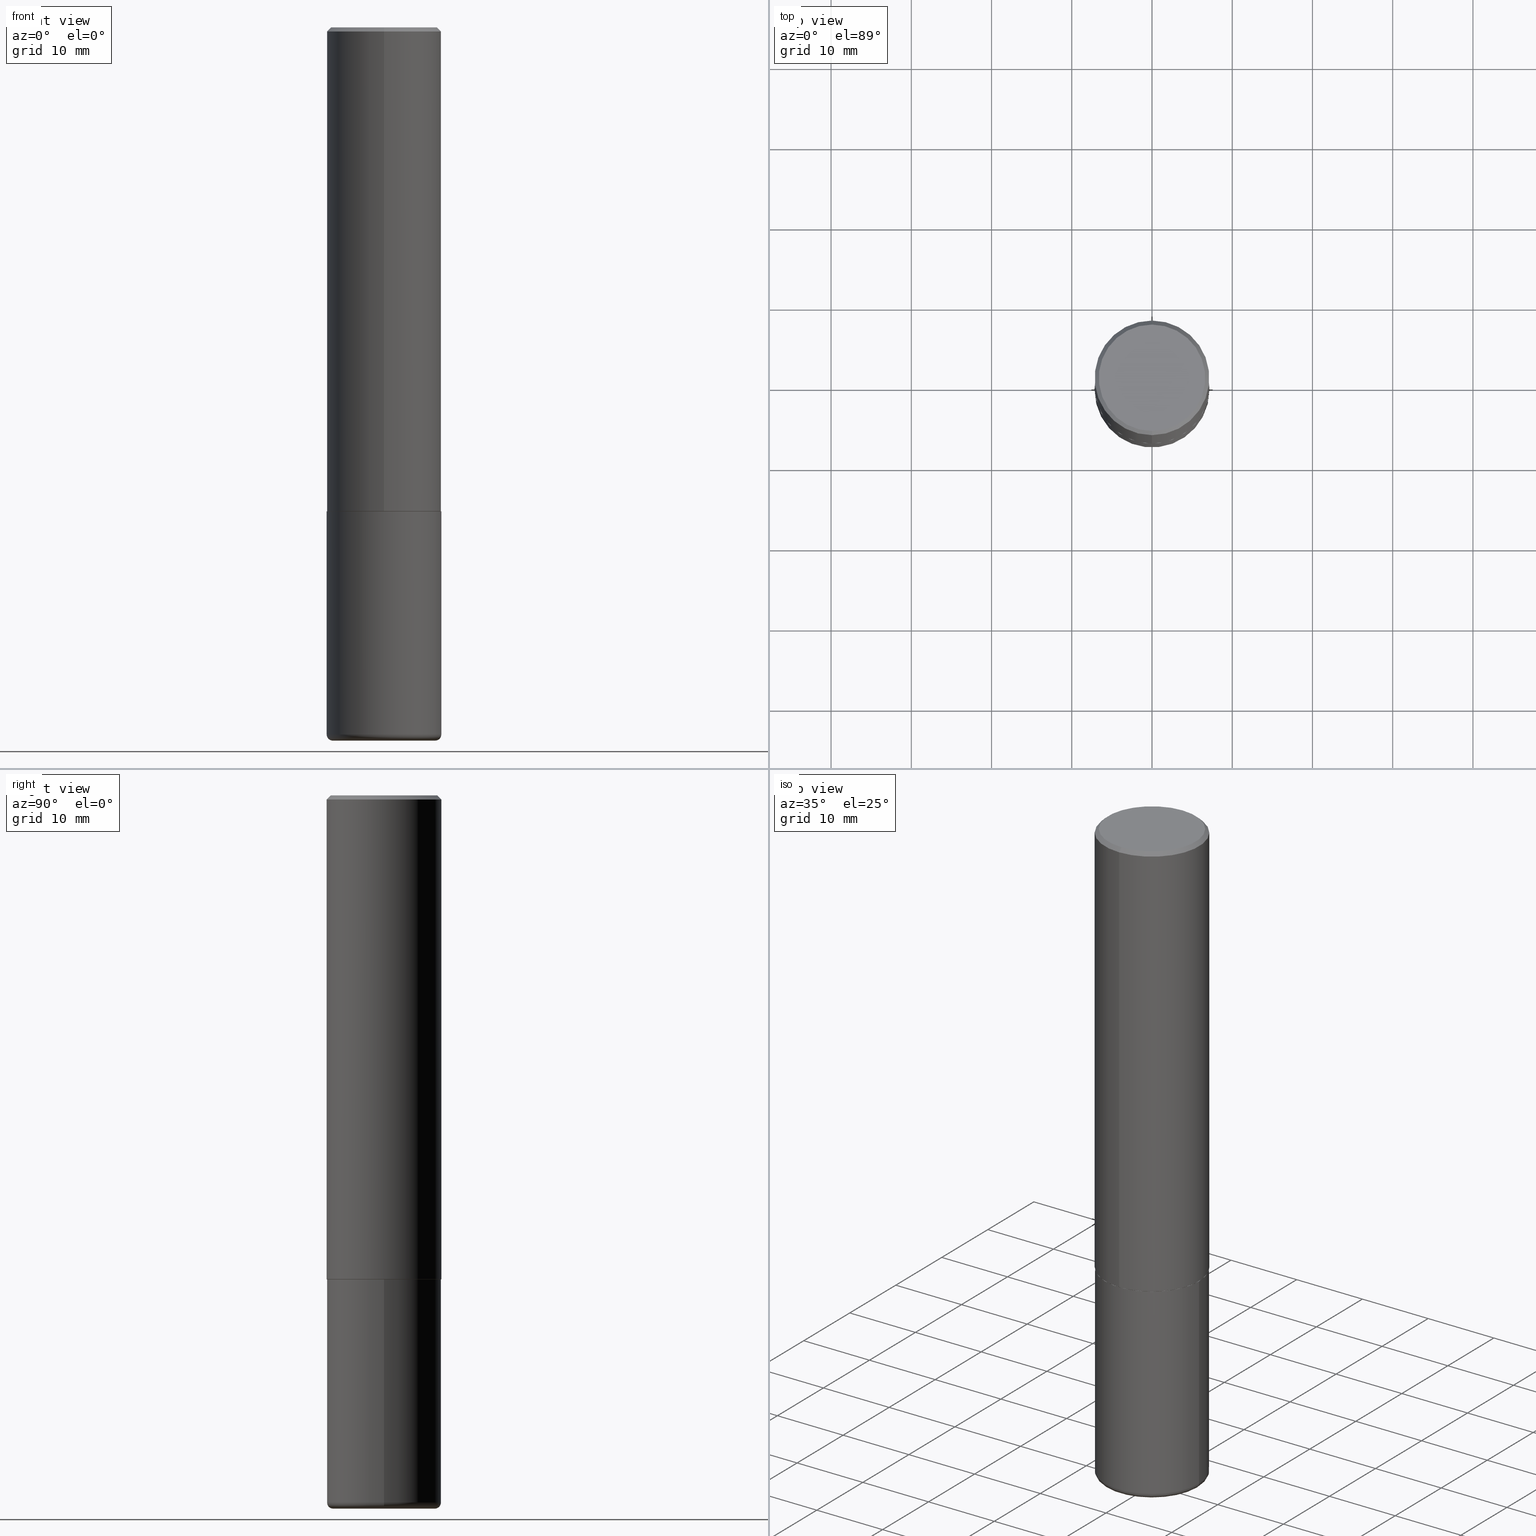
[diagram: canonical four-view strip — front | top / right | iso, engineering-drawing reading convention]
A machine part, canonical four-view strip (front | top / right | iso — engineering-drawing reading convention). The complete STEP part file that produces these views, byte-faithful:
ISO-10303-21;
HEADER;
FILE_DESCRIPTION (( 'STEP AP203' ),
    '1' );
FILE_NAME ('36868.STEP',
    '2024-03-01T18:29:36',
    ( '' ),
    ( '' ),
    'SwSTEP 2.0',
    'SolidWorks 2023',
    '' );
FILE_SCHEMA (( 'CONFIG_CONTROL_DESIGN' ));
ENDSEC;

DATA;
#1 = ORIENTED_EDGE ( 'NONE', *, *, #41, .F. ) ;
#2 = EDGE_CURVE ( 'NONE', #405, #361, #144, .T. ) ;
#3 = CIRCLE ( 'NONE', #380, 0.2812500000000002776 ) ;
#4 = CC_DESIGN_APPROVAL ( #233, ( #291 ) ) ;
#5 = VERTEX_POINT ( 'NONE', #278 ) ;
#6 = ORIENTED_EDGE ( 'NONE', *, *, #57, .T. ) ;
#7 = CC_DESIGN_PERSON_AND_ORGANIZATION_ASSIGNMENT ( #70, #304, ( #291 ) ) ;
#8 = CARTESIAN_POINT ( 'NONE',  ( 1.824298999545535127E-15, 0.2612499999999997602, -8.138688755214296184E-16 ) ) ;
#9 = FACE_OUTER_BOUND ( 'NONE', #189, .T. ) ;
#10 = DIRECTION ( 'NONE',  ( 1.000000000000000000, 0.000000000000000000, 0.000000000000000000 ) ) ;
#11 = CARTESIAN_POINT ( 'NONE',  ( 8.485776757462424574E-29, -1.211544024578571439E-14, -3.469999999999999751 ) ) ;
#12 = ADVANCED_FACE ( 'NONE', ( #136 ), #211, .T. ) ;
#13 = CARTESIAN_POINT ( 'NONE',  ( -1.929515061873242463E-15, -0.2812500000000000555, -0.01999999999999908101 ) ) ;
#14 = APPLICATION_PROTOCOL_DEFINITION ( 'international standard', 'config_control_design', 1994, #244 ) ;
#15 = CALENDAR_DATE ( 2024, 1, 3 ) ;
#16 = CARTESIAN_POINT ( 'NONE',  ( -1.860910081895526737E-15, -0.2612499999999997602, 1.108081726401262636E-15 ) ) ;
#17 = DIRECTION ( 'NONE',  ( -6.982962677686265133E-15, -1.000000000000000000, 3.490678759099360641E-15 ) ) ;
#18 = CARTESIAN_POINT ( 'NONE',  ( 4.892058489249632096E-31, -6.981357518198745391E-17, -0.02000000000000006287 ) ) ;
#19 = APPROVAL_STATUS ( 'not_yet_approved' ) ;
#20 = DIRECTION ( 'NONE',  ( -2.445468806185136877E-29, 3.491481338843145188E-15, 1.000000000000000000 ) ) ;
#21 = APPROVAL_DATE_TIME ( #373, #366 ) ;
#22 = DIRECTION ( 'NONE',  ( -6.982962677686265922E-15, -1.000000000000000000, 3.899158599342391639E-15 ) ) ;
#23 = AXIS2_PLACEMENT_3D ( 'NONE', #320, #321, #184 ) ;
#24 = APPROVAL_DATE_TIME ( #369, #233 ) ;
#25 = DIRECTION ( 'NONE',  ( -6.982962677686265133E-15, -1.000000000000000000, 3.885294924322503744E-15 ) ) ;
#26 = CARTESIAN_POINT ( 'NONE',  ( -1.956975290421518122E-15, -0.2802500000000083258, -2.374999999999998668 ) ) ;
#27 = DATE_AND_TIME ( #314, #357 ) ;
#28 = ADVANCED_BREP_SHAPE_REPRESENTATION ( '36868', ( #105, #383, #214 ), #177 ) ;
#29 = EDGE_CURVE ( 'NONE', #360, #123, #142, .T. ) ;
#30 = PERSON_AND_ORGANIZATION ( #101, #198 ) ;
#31 = DIRECTION ( 'NONE',  ( -6.982962677686266711E-15, -1.000000000000000000, 3.491481338843145583E-15 ) ) ;
#32 = ORIENTED_EDGE ( 'NONE', *, *, #392, .T. ) ;
#33 = EDGE_LOOP ( 'NONE', ( #401, #358, #1, #192 ) ) ;
#34 = CARTESIAN_POINT ( 'NONE',  ( 5.809319455983918402E-29, -8.290362052860982064E-15, -2.374999999999999556 ) ) ;
#35 = ORIENTED_EDGE ( 'NONE', *, *, #336, .T. ) ;
#36 = MECHANICAL_CONTEXT ( 'NONE', #147, 'mechanical' ) ;
#37 = ORIENTED_EDGE ( 'NONE', *, *, #185, .T. ) ;
#38 = CLOSED_SHELL ( 'NONE', ( #220, #164, #382, #64, #295, #289, #174, #273 ) ) ;
#39 = EDGE_LOOP ( 'NONE', ( #292, #131, #356, #265 ) ) ;
#40 = ORIENTED_EDGE ( 'NONE', *, *, #392, .F. ) ;
#41 = EDGE_CURVE ( 'NONE', #67, #361, #307, .T. ) ;
#42 = DIRECTION ( 'NONE',  ( -2.446029244624807763E-29, 3.490678759099361035E-15, 1.000000000000000000 ) ) ;
#43 = DIRECTION ( 'NONE',  ( -2.445468806185136597E-29, 3.491481338843145583E-15, 1.000000000000000000 ) ) ;
#44 = EDGE_CURVE ( 'NONE', #361, #67, #285, .T. ) ;
#45 = AXIS2_PLACEMENT_3D ( 'NONE', #294, #99, #243 ) ;
#46 = AXIS2_PLACEMENT_3D ( 'NONE', #315, #352, #416 ) ;
#47 = DIRECTION ( 'NONE',  ( 6.982962677686265922E-15, 1.000000000000000000, -3.490678759099361035E-15 ) ) ;
#48 = PERSON_AND_ORGANIZATION ( #101, #198 ) ;
#49 = CARTESIAN_POINT ( 'NONE',  ( 1.963958253099262907E-15, 0.2812499999999999445, -0.02000000000000104472 ) ) ;
#50 = DIRECTION ( 'NONE',  ( -6.982962677686265133E-15, -1.000000000000000000, 3.490678759099360641E-15 ) ) ;
#51 = APPROVAL_ROLE ( '' ) ;
#52 = CARTESIAN_POINT ( 'NONE',  ( 0.2812500000000000000, -1.025622643285173184E-14, -2.374999999999999556 ) ) ;
#53 = DIRECTION ( 'NONE',  ( -2.446029244624808043E-29, 3.490678759099361035E-15, 1.000000000000000000 ) ) ;
#54 = VECTOR ( 'NONE', #403, 39.37007874015748143 ) ;
#55 = VECTOR ( 'NONE', #255, 39.37007874015748854 ) ;
#56 = PERSON_AND_ORGANIZATION_ROLE ( 'creator' ) ;
#57 = EDGE_CURVE ( 'NONE', #59, #237, #406, .T. ) ;
#58 = CARTESIAN_POINT ( 'NONE',  ( -4.797688249310059522E-45, 6.846683661468670826E-31, 1.961419005865552790E-16 ) ) ;
#59 = VERTEX_POINT ( 'NONE', #346 ) ;
#60 = EDGE_LOOP ( 'NONE', ( #396, #68 ) ) ;
#61 = AXIS2_PLACEMENT_3D ( 'NONE', #117, #180, #213 ) ;
#62 = EDGE_CURVE ( 'NONE', #293, #123, #3, .T. ) ;
#63 = ORIENTED_EDGE ( 'NONE', *, *, #367, .T. ) ;
#64 = ADVANCED_FACE ( 'NONE', ( #274 ), #331, .T. ) ;
#65 = DIRECTION ( 'NONE',  ( 1.000000000000000000, -6.982962677686266711E-15, 4.876176775795935793E-29 ) ) ;
#66 = ORIENTED_EDGE ( 'NONE', *, *, #384, .F. ) ;
#67 = VERTEX_POINT ( 'NONE', #52 ) ;
#68 = ORIENTED_EDGE ( 'NONE', *, *, #44, .T. ) ;
#69 = DIRECTION ( 'NONE',  ( -6.982962677686265922E-15, -1.000000000000000000, 3.490678759099361035E-15 ) ) ;
#70 = PERSON_AND_ORGANIZATION ( #101, #198 ) ;
#71 = VERTEX_POINT ( 'NONE', #203 ) ;
#72 = DIRECTION ( 'NONE',  ( 1.000000000000000000, -6.982962677686266711E-15, 0.000000000000000000 ) ) ;
#73 = CIRCLE ( 'NONE', #318, 0.2512500000000000289 ) ;
#74 = SHAPE_DEFINITION_REPRESENTATION ( #154, #28 ) ;
#75 = DIRECTION ( 'NONE',  ( -2.446029244624808043E-29, 3.490678759099361035E-15, 1.000000000000000000 ) ) ;
#76 = DIRECTION ( 'NONE',  ( -6.982962677686265922E-15, -1.000000000000000000, 3.899158599342391639E-15 ) ) ;
#77 = AXIS2_PLACEMENT_3D ( 'NONE', #148, #152, #50 ) ;
#78 = CARTESIAN_POINT ( 'NONE',  ( 5.809319455983918402E-29, -8.290362052860982064E-15, -2.374999999999999556 ) ) ;
#79 = DATE_AND_TIME ( #183, #269 ) ;
#80 = PLANE ( 'NONE',  #23 ) ;
#81 = FACE_OUTER_BOUND ( 'NONE', #165, .T. ) ;
#82 = CC_DESIGN_PERSON_AND_ORGANIZATION_ASSIGNMENT ( #204, #299, ( #291 ) ) ;
#83 = CARTESIAN_POINT ( 'NONE',  ( -0.2512500000000000289, -1.033020162218846287E-14, -3.469999999999999751 ) ) ;
#84 = CIRCLE ( 'NONE', #279, 0.2612499999999997602 ) ;
#85 = AXIS2_PLACEMENT_3D ( 'NONE', #83, #355, #226 ) ;
#86 = EDGE_LOOP ( 'NONE', ( #188, #333, #353, #326 ) ) ;
#87 = FACE_OUTER_BOUND ( 'NONE', #391, .T. ) ;
#88 = VERTEX_POINT ( 'NONE', #310 ) ;
#89 = CC_DESIGN_PERSON_AND_ORGANIZATION_ASSIGNMENT ( #193, #130, ( #225 ) ) ;
#90 = CARTESIAN_POINT ( 'NONE',  ( 0.000000000000000000, 0.000000000000000000, 0.000000000000000000 ) ) ;
#91 = ORIENTED_EDGE ( 'NONE', *, *, #367, .F. ) ;
#92 = ORIENTED_EDGE ( 'NONE', *, *, #413, .F. ) ;
#93 = AXIS2_PLACEMENT_3D ( 'NONE', #377, #368, #210 ) ;
#94 = CIRCLE ( 'NONE', #411, 0.2812500000000002776 ) ;
#95 = DIRECTION ( 'NONE',  ( -2.446029244624808043E-29, 3.490678759099361035E-15, 1.000000000000000000 ) ) ;
#96 = ORIENTED_EDGE ( 'NONE', *, *, #57, .F. ) ;
#97 = ORIENTED_EDGE ( 'NONE', *, *, #153, .F. ) ;
#98 = DIRECTION ( 'NONE',  ( -6.982962677686265922E-15, -1.000000000000000000, 3.899158599342391639E-15 ) ) ;
#99 = DIRECTION ( 'NONE',  ( -2.445468806185136597E-29, 3.491481338843145583E-15, 1.000000000000000000 ) ) ;
#100 = CIRCLE ( 'NONE', #138, 0.2812500000000000000 ) ;
#101 = PERSON ( 'UNSPECIFIED', 'UNSPECIFIED', 'UNSPECIFIED', ('UNSPECIFIED'), ('UNSPECIFIED'), ('UNSPECIFIED') ) ;
#102 = AXIS2_PLACEMENT_3D ( 'NONE', #359, #400, #65 ) ;
#103 = APPLICATION_PROTOCOL_DEFINITION ( 'international standard', 'config_control_design', 1994, #147 ) ;
#104 = FACE_OUTER_BOUND ( 'NONE', #288, .T. ) ;
#105 = MANIFOLD_SOLID_BREP ( 'Body-Move/Copy2[1]', #197 ) ;
#106 = CALENDAR_DATE ( 2024, 1, 3 ) ;
#107 = EDGE_CURVE ( 'NONE', #88, #71, #73, .T. ) ;
#108 = DIRECTION ( 'NONE',  ( 1.000000000000000000, -6.982962677686269866E-15, 0.000000000000000000 ) ) ;
#109 = APPROVAL_STATUS ( 'not_yet_approved' ) ;
#110 = TOROIDAL_SURFACE ( 'NONE', #340, 0.2512500000000000289, 0.02999999999999969705 ) ;
#111 = CIRCLE ( 'NONE', #85, 0.02999999999999967970 ) ;
#112 = CARTESIAN_POINT ( 'NONE',  ( 0.000000000000000000, 0.000000000000000000, 0.000000000000000000 ) ) ;
#113 = DIRECTION ( 'NONE',  ( -2.446029244624808043E-29, 3.490678759099361035E-15, 1.000000000000000000 ) ) ;
#114 = DATE_TIME_ROLE ( 'classification_date' ) ;
#115 = CIRCLE ( 'NONE', #246, 0.2802499999999999991 ) ;
#116 = AXIS2_PLACEMENT_3D ( 'NONE', #385, #31, #187 ) ;
#117 = CARTESIAN_POINT ( 'NONE',  ( 8.485776757462424574E-29, -1.211544024578571439E-14, -3.469999999999999751 ) ) ;
#118 = FACE_OUTER_BOUND ( 'NONE', #302, .T. ) ;
#119 = PRODUCT_DEFINITION ( 'UNKNOWN', '', #291, #335 ) ;
#120 = ADVANCED_FACE ( 'NONE', ( #104 ), #110, .T. ) ;
#121 = CARTESIAN_POINT ( 'NONE',  ( -0.2812499999999998335, -1.011703880146043420E-14, -3.469999999999999751 ) ) ;
#122 = AXIS2_PLACEMENT_3D ( 'NONE', #317, #182, #378 ) ;
#123 = VERTEX_POINT ( 'NONE', #342 ) ;
#124 = CC_DESIGN_APPROVAL ( #319, ( #119 ) ) ;
#125 = CC_DESIGN_DATE_AND_TIME_ASSIGNMENT ( #141, #114, ( #161 ) ) ;
#126 = DIRECTION ( 'NONE',  ( -2.446029244624808043E-29, 3.490678759099361035E-15, 1.000000000000000000 ) ) ;
#127 = ORIENTED_EDGE ( 'NONE', *, *, #234, .T. ) ;
#128 = ORIENTED_EDGE ( 'NONE', *, *, #223, .T. ) ;
#129 = AXIS2_PLACEMENT_3D ( 'NONE', #11, #43, #108 ) ;
#130 = PERSON_AND_ORGANIZATION_ROLE ( 'design_owner' ) ;
#131 = ORIENTED_EDGE ( 'NONE', *, *, #29, .T. ) ;
#132 = CARTESIAN_POINT ( 'NONE',  ( 5.809319455983918402E-29, -8.290362052860982064E-15, -2.374999999999999556 ) ) ;
#133 = ORIENTED_EDGE ( 'NONE', *, *, #29, .F. ) ;
#134 = ORIENTED_EDGE ( 'NONE', *, *, #223, .F. ) ;
#135 = LINE ( 'NONE', #238, #54 ) ;
#136 = FACE_OUTER_BOUND ( 'NONE', #33, .T. ) ;
#137 = LINE ( 'NONE', #171, #395 ) ;
#138 = AXIS2_PLACEMENT_3D ( 'NONE', #158, #95, #298 ) ;
#139 = CARTESIAN_POINT ( 'NONE',  ( 5.806873426739292794E-29, -8.286871374101881312E-15, -2.373999999999999222 ) ) ;
#140 = CARTESIAN_POINT ( 'NONE',  ( 1.991296016967738351E-15, 0.2802499999999917280, -2.375000000000000888 ) ) ;
#141 = DATE_AND_TIME ( #15, #167 ) ;
#142 = LINE ( 'NONE', #140, #256 ) ;
#143 = COORDINATED_UNIVERSAL_TIME_OFFSET ( 5, 0, .BEHIND. ) ;
#144 = LINE ( 'NONE', #176, #290 ) ;
#145 = CIRCLE ( 'NONE', #45, 0.2812500000000000000 ) ;
#146 = CIRCLE ( 'NONE', #258, 0.2512500000000000289 ) ;
#147 = APPLICATION_CONTEXT ( 'configuration controlled 3d designs of mechanical parts and assemblies' ) ;
#148 = CARTESIAN_POINT ( 'NONE',  ( 0.000000000000000000, 0.000000000000000000, 0.000000000000000000 ) ) ;
#149 = PERSON_AND_ORGANIZATION ( #101, #198 ) ;
#150 = CARTESIAN_POINT ( 'NONE',  ( -1.929515061873242463E-15, -0.2812500000000000555, -0.01999999999999908101 ) ) ;
#151 = CIRCLE ( 'NONE', #248, 0.2812500000000000000 ) ;
#152 = DIRECTION ( 'NONE',  ( -2.446029244624808043E-29, 3.490678759099361035E-15, 1.000000000000000000 ) ) ;
#153 = EDGE_CURVE ( 'NONE', #402, #405, #190, .T. ) ;
#154 = PRODUCT_DEFINITION_SHAPE ( 'NONE', 'NONE',  #119 ) ;
#155 = AXIS2_PLACEMENT_3D ( 'NONE', #267, #412, #72 ) ;
#156 = ORIENTED_EDGE ( 'NONE', *, *, #384, .T. ) ;
#157 = DIMENSIONAL_EXPONENTS ( 1.000000000000000000, 0.000000000000000000, 0.000000000000000000, 0.000000000000000000, 0.000000000000000000, 0.000000000000000000, 0.000000000000000000 ) ;
#158 = CARTESIAN_POINT ( 'NONE',  ( 4.892058489249632096E-31, -6.981357518198745391E-17, -0.02000000000000006287 ) ) ;
#159 = EDGE_LOOP ( 'NONE', ( #325, #334, #195, #389 ) ) ;
#160 = DIRECTION ( 'NONE',  ( -6.982962677686265133E-15, -1.000000000000000000, 3.490678759099360641E-15 ) ) ;
#161 = SECURITY_CLASSIFICATION ( '', '', #275 ) ;
#162 = ORIENTED_EDGE ( 'NONE', *, *, #234, .F. ) ;
#163 = CARTESIAN_POINT ( 'NONE',  ( 0.000000000000000000, 0.000000000000000000, 0.000000000000000000 ) ) ;
#164 = ADVANCED_FACE ( 'NONE', ( #375 ), #202, .T. ) ;
#165 = EDGE_LOOP ( 'NONE', ( #264, #417, #398, #418 ) ) ;
#166 = AXIS2_PLACEMENT_3D ( 'NONE', #345, #113, #76 ) ;
#167 = LOCAL_TIME ( 13, 29, 36.00000000000000000, #250 ) ;
#168 = DIRECTION ( 'NONE',  ( -2.445468806185136597E-29, 3.491481338843145583E-15, 1.000000000000000000 ) ) ;
#169 = UNCERTAINTY_MEASURE_WITH_UNIT (LENGTH_MEASURE( 1.000000000000000082E-05 ), #260, 'distance_accuracy_value', 'NONE');
#170 = PERSON_AND_ORGANIZATION_ROLE ( 'classification_officer' ) ;
#171 = CARTESIAN_POINT ( 'NONE',  ( 1.998401444325282562E-15, 0.2812500000000001665, -9.817534009966957842E-16 ) ) ;
#172 = CYLINDRICAL_SURFACE ( 'NONE', #77, 0.2812500000000001665 ) ;
#173 = DIRECTION ( 'NONE',  ( -2.446029244624808043E-29, 3.490678759099361035E-15, 1.000000000000000000 ) ) ;
#174 = ADVANCED_FACE ( 'NONE', ( #9 ), #409, .F. ) ;
#175 = AXIS2_PLACEMENT_3D ( 'NONE', #78, #215, #22 ) ;
#176 = CARTESIAN_POINT ( 'NONE',  ( -0.2812500000000000000, 1.998401444325281773E-15, -1.383450494134192269E-29 ) ) ;
#177 =( GEOMETRIC_REPRESENTATION_CONTEXT ( 3 ) GLOBAL_UNCERTAINTY_ASSIGNED_CONTEXT ( ( #169 ) ) GLOBAL_UNIT_ASSIGNED_CONTEXT ( ( #260, #324, #266 ) ) REPRESENTATION_CONTEXT ( 'NONE', 'WORKASPACE' ) );
#178 = FACE_OUTER_BOUND ( 'NONE', #159, .T. ) ;
#179 = CC_DESIGN_PERSON_AND_ORGANIZATION_ASSIGNMENT ( #149, #56, ( #119 ) ) ;
#180 = DIRECTION ( 'NONE',  ( -2.445468806185136597E-29, 3.491481338843145583E-15, 1.000000000000000000 ) ) ;
#181 = AXIS2_PLACEMENT_3D ( 'NONE', #112, #168, #365 ) ;
#182 = DIRECTION ( 'NONE',  ( -2.446029244624808043E-29, 3.490678759099361035E-15, 1.000000000000000000 ) ) ;
#183 = CALENDAR_DATE ( 2024, 1, 3 ) ;
#184 = DIRECTION ( 'NONE',  ( -1.000000000000000000, 6.982962677686265922E-15, -4.876176775795935793E-29 ) ) ;
#185 = EDGE_CURVE ( 'NONE', #237, #194, #100, .T. ) ;
#186 = DATE_TIME_ROLE ( 'creation_date' ) ;
#187 = DIRECTION ( 'NONE',  ( 1.000000000000000000, -6.982962677686277755E-15, 0.000000000000000000 ) ) ;
#188 = ORIENTED_EDGE ( 'NONE', *, *, #62, .T. ) ;
#189 = EDGE_LOOP ( 'NONE', ( #329, #134 ) ) ;
#190 = CIRCLE ( 'NONE', #129, 0.2812500000000000000 ) ;
#191 = EDGE_LOOP ( 'NONE', ( #235, #236 ) ) ;
#192 = ORIENTED_EDGE ( 'NONE', *, *, #300, .F. ) ;
#193 = PERSON_AND_ORGANIZATION ( #101, #198 ) ;
#194 = VERTEX_POINT ( 'NONE', #13 ) ;
#195 = ORIENTED_EDGE ( 'NONE', *, *, #249, .T. ) ;
#196 = CARTESIAN_POINT ( 'NONE',  ( -4.797688249310059522E-45, 6.846683661468670826E-31, 1.961419005865552790E-16 ) ) ;
#197 = CLOSED_SHELL ( 'NONE', ( #12, #120, #399, #312, #217, #216 ) ) ;
#198 = ORGANIZATION ( 'UNSPECIFIED', 'UNSPECIFIED', '' ) ;
#199 = ORIENTED_EDGE ( 'NONE', *, *, #354, .T. ) ;
#200 = PLANE ( 'NONE',  #305 ) ;
#201 = DIRECTION ( 'NONE',  ( 1.000000000000000000, -6.982962677686270655E-15, 4.883557194083114022E-29 ) ) ;
#202 = CYLINDRICAL_SURFACE ( 'NONE', #268, 0.2812500000000001665 ) ;
#203 = CARTESIAN_POINT ( 'NONE',  ( -0.2512500000000000289, -1.027599243190709680E-14, -3.499999999999999112 ) ) ;
#204 = PERSON_AND_ORGANIZATION ( #101, #198 ) ;
#205 = LOCAL_TIME ( 13, 29, 36.00000000000000000, #407 ) ;
#206 = DIRECTION ( 'NONE',  ( -2.446029244624808043E-29, 3.490678759099361035E-15, 1.000000000000000000 ) ) ;
#207 = PRODUCT_RELATED_PRODUCT_CATEGORY ( 'detail', '', ( #225 ) ) ;
#208 = APPROVAL_ROLE ( '' ) ;
#209 = DIRECTION ( 'NONE',  ( -2.445468806185136877E-29, 3.491481338843145188E-15, 1.000000000000000000 ) ) ;
#210 = DIRECTION ( 'NONE',  ( 6.982962677686266711E-15, 1.000000000000000000, -3.490694658571002804E-15 ) ) ;
#211 = CYLINDRICAL_SURFACE ( 'NONE', #181, 0.2812500000000000000 ) ;
#212 = DIRECTION ( 'NONE',  ( -2.446029244624808043E-29, 3.490678759099361035E-15, 1.000000000000000000 ) ) ;
#213 = DIRECTION ( 'NONE',  ( 1.000000000000000000, -6.982962677686270655E-15, 4.883557194083114022E-29 ) ) ;
#214 = AXIS2_PLACEMENT_3D ( 'NONE', #163, #296, #10 ) ;
#215 = DIRECTION ( 'NONE',  ( -2.446029244624808043E-29, 3.490678759099361035E-15, 1.000000000000000000 ) ) ;
#216 = ADVANCED_FACE ( 'NONE', ( #270 ), #371, .T. ) ;
#217 = ADVANCED_FACE ( 'NONE', ( #118 ), #347, .T. ) ;
#218 = CARTESIAN_POINT ( 'NONE',  ( 1.387395666507435011E-28, -4.609065897632661278E-15, -3.499999999999999112 ) ) ;
#219 = COORDINATED_UNIVERSAL_TIME_OFFSET ( 5, 0, .BEHIND. ) ;
#220 = ADVANCED_FACE ( 'NONE', ( #348 ), #410, .T. ) ;
#221 = APPROVAL_DATE_TIME ( #27, #319 ) ;
#222 = DIRECTION ( 'NONE',  ( -6.982962677686266711E-15, -1.000000000000000000, 3.490694658571002804E-15 ) ) ;
#223 = EDGE_CURVE ( 'NONE', #360, #5, #224, .T. ) ;
#224 = CIRCLE ( 'NONE', #166, 0.2802499999999999991 ) ;
#225 = PRODUCT ( '36868', '36868', '', ( #36 ) ) ;
#226 = DIRECTION ( 'NONE',  ( -1.000000000000000000, 7.105427357601001859E-15, 0.000000000000000000 ) ) ;
#227 = ORIENTED_EDGE ( 'NONE', *, *, #388, .T. ) ;
#228 = EDGE_CURVE ( 'NONE', #5, #360, #115, .T. ) ;
#229 = DIRECTION ( 'NONE',  ( 1.000000000000000000, -6.982962677686269077E-15, 0.000000000000000000 ) ) ;
#230 =( LENGTH_UNIT ( ) NAMED_UNIT ( * ) SI_UNIT ( $, .METRE. ) );
#231 = AXIS2_PLACEMENT_3D ( 'NONE', #34, #42, #69 ) ;
#232 = ORIENTED_EDGE ( 'NONE', *, *, #306, .F. ) ;
#233 = APPROVAL ( #390, 'UNSPECIFIED' ) ;
#234 = EDGE_CURVE ( 'NONE', #287, #59, #84, .T. ) ;
#235 = ORIENTED_EDGE ( 'NONE', *, *, #107, .F. ) ;
#236 = ORIENTED_EDGE ( 'NONE', *, *, #388, .F. ) ;
#237 = VERTEX_POINT ( 'NONE', #330 ) ;
#238 = CARTESIAN_POINT ( 'NONE',  ( -1.963958253099263301E-15, -0.2812500000000001665, 9.817534009966957842E-16 ) ) ;
#239 = VECTOR ( 'NONE', #209, 39.37007874015748143 ) ;
#240 = APPROVAL_PERSON_ORGANIZATION ( #30, #233, #208 ) ;
#241 = DIRECTION ( 'NONE',  ( -2.445468806185136597E-29, 3.491481338843145583E-15, 1.000000000000000000 ) ) ;
#242 = DIRECTION ( 'NONE',  ( 5.024295867787889629E-15, 0.7071067811865257013, 0.7071067811865691111 ) ) ;
#243 = DIRECTION ( 'NONE',  ( 1.000000000000000000, -6.982962677686269866E-15, 0.000000000000000000 ) ) ;
#244 = APPLICATION_CONTEXT ( 'configuration controlled 3d designs of mechanical parts and assemblies' ) ;
#245 = CALENDAR_DATE ( 2024, 1, 3 ) ;
#246 = AXIS2_PLACEMENT_3D ( 'NONE', #132, #75, #98 ) ;
#247 = CC_DESIGN_PERSON_AND_ORGANIZATION_ASSIGNMENT ( #339, #170, ( #161 ) ) ;
#248 = AXIS2_PLACEMENT_3D ( 'NONE', #18, #126, #222 ) ;
#249 = EDGE_CURVE ( 'NONE', #293, #194, #135, .T. ) ;
#250 = COORDINATED_UNIVERSAL_TIME_OFFSET ( 5, 0, .BEHIND. ) ;
#251 = CARTESIAN_POINT ( 'NONE',  ( 5.807988414689698296E-29, -8.292268179752468540E-15, -2.374999999999999556 ) ) ;
#252 = PERSON_AND_ORGANIZATION ( #101, #198 ) ;
#253 = CIRCLE ( 'NONE', #376, 0.2612499999999997602 ) ;
#254 = CARTESIAN_POINT ( 'NONE',  ( 0.2812499999999998335, -1.407939849888497612E-14, -3.469999999999999751 ) ) ;
#255 = DIRECTION ( 'NONE',  ( -4.851104656540959542E-15, -0.7071067811865493491, -0.7071067811865454633 ) ) ;
#256 = VECTOR ( 'NONE', #242, 39.37007874015748854 ) ;
#257 = EDGE_CURVE ( 'NONE', #405, #402, #145, .T. ) ;
#258 = AXIS2_PLACEMENT_3D ( 'NONE', #415, #280, #229 ) ;
#259 = EDGE_LOOP ( 'NONE', ( #32, #127 ) ) ;
#260 =( CONVERSION_BASED_UNIT ( 'INCH', #286 ) LENGTH_UNIT ( ) NAMED_UNIT ( #157 ) );
#261 = EDGE_LOOP ( 'NONE', ( #133, #128, #35, #232 ) ) ;
#262 = CARTESIAN_POINT ( 'NONE',  ( -0.2812500000000000000, -8.205452768443809695E-15, -2.374999999999999556 ) ) ;
#263 = CC_DESIGN_DATE_AND_TIME_ASSIGNMENT ( #79, #186, ( #119 ) ) ;
#264 = ORIENTED_EDGE ( 'NONE', *, *, #2, .F. ) ;
#265 = ORIENTED_EDGE ( 'NONE', *, *, #336, .F. ) ;
#266 =( NAMED_UNIT ( * ) SI_UNIT ( $, .STERADIAN. ) SOLID_ANGLE_UNIT ( ) );
#267 = CARTESIAN_POINT ( 'NONE',  ( 5.807988414689698296E-29, -8.292268179752468540E-15, -2.374999999999999556 ) ) ;
#268 = AXIS2_PLACEMENT_3D ( 'NONE', #90, #173, #17 ) ;
#269 = LOCAL_TIME ( 13, 29, 36.00000000000000000, #219 ) ;
#270 = FACE_OUTER_BOUND ( 'NONE', #191, .T. ) ;
#271 = DIRECTION ( 'NONE',  ( -6.982962677686265133E-15, -1.000000000000000000, 3.885294924322503744E-15 ) ) ;
#272 = APPROVAL_ROLE ( '' ) ;
#273 = ADVANCED_FACE ( 'NONE', ( #364 ), #200, .F. ) ;
#274 = FACE_OUTER_BOUND ( 'NONE', #408, .T. ) ;
#275 = SECURITY_CLASSIFICATION_LEVEL ( 'unclassified' ) ;
#276 = CARTESIAN_POINT ( 'NONE',  ( 5.806873426739292794E-29, -8.286871374101881312E-15, -2.373999999999999222 ) ) ;
#277 = VECTOR ( 'NONE', #303, 39.37007874015748854 ) ;
#278 = CARTESIAN_POINT ( 'NONE',  ( -1.956975290421518122E-15, -0.2802500000000083258, -2.374999999999998668 ) ) ;
#279 = AXIS2_PLACEMENT_3D ( 'NONE', #196, #341, #160 ) ;
#280 = DIRECTION ( 'NONE',  ( -2.445468806185136597E-29, 3.491481338843145583E-15, 1.000000000000000000 ) ) ;
#281 = CARTESIAN_POINT ( 'NONE',  ( 0.2812500000000000000, -1.963958253099262512E-15, 1.371424718192607012E-29 ) ) ;
#282 = DIRECTION ( 'NONE',  ( -6.982962677686265133E-15, -1.000000000000000000, 3.490678759099360641E-15 ) ) ;
#283 = EDGE_CURVE ( 'NONE', #123, #237, #137, .T. ) ;
#284 = CARTESIAN_POINT ( 'NONE',  ( 1.994848730646540433E-15, 0.2802499999999917280, -2.375000000000000888 ) ) ;
#285 = CIRCLE ( 'NONE', #323, 0.2812500000000000000 ) ;
#286 = LENGTH_MEASURE_WITH_UNIT ( LENGTH_MEASURE( 0.02539999999999999897 ), #230 );
#287 = VERTEX_POINT ( 'NONE', #16 ) ;
#288 = EDGE_LOOP ( 'NONE', ( #322, #63, #97, #92 ) ) ;
#289 = ADVANCED_FACE ( 'NONE', ( #349 ), #362, .T. ) ;
#290 = VECTOR ( 'NONE', #20, 39.37007874015748143 ) ;
#291 = PRODUCT_DEFINITION_FORMATION_WITH_SPECIFIED_SOURCE ( 'ANY', '', #225, .NOT_KNOWN. ) ;
#292 = ORIENTED_EDGE ( 'NONE', *, *, #228, .T. ) ;
#293 = VERTEX_POINT ( 'NONE', #316 ) ;
#294 = CARTESIAN_POINT ( 'NONE',  ( 8.485776757462424574E-29, -1.211544024578571439E-14, -3.469999999999999751 ) ) ;
#295 = ADVANCED_FACE ( 'NONE', ( #178 ), #172, .T. ) ;
#296 = DIRECTION ( 'NONE',  ( 0.000000000000000000, 0.000000000000000000, 1.000000000000000000 ) ) ;
#297 = DIRECTION ( 'NONE',  ( -2.445468806185136597E-29, 3.491481338843145583E-15, 1.000000000000000000 ) ) ;
#298 = DIRECTION ( 'NONE',  ( -6.982962677686266711E-15, -1.000000000000000000, 3.490694658571002804E-15 ) ) ;
#299 = PERSON_AND_ORGANIZATION_ROLE ( 'design_supplier' ) ;
#300 = EDGE_CURVE ( 'NONE', #402, #67, #311, .T. ) ;
#301 = DIRECTION ( 'NONE',  ( -2.446029244624808323E-29, 3.490678759099361035E-15, 1.000000000000000000 ) ) ;
#302 = EDGE_LOOP ( 'NONE', ( #91, #227, #327, #394 ) ) ;
#303 = DIRECTION ( 'NONE',  ( -4.937700262164378437E-15, -0.7071067811865208164, 0.7071067811865739960 ) ) ;
#304 = PERSON_AND_ORGANIZATION_ROLE ( 'creator' ) ;
#305 = AXIS2_PLACEMENT_3D ( 'NONE', #8, #370, #47 ) ;
#306 = EDGE_CURVE ( 'NONE', #123, #293, #94, .T. ) ;
#307 = CIRCLE ( 'NONE', #155, 0.2812500000000000000 ) ;
#308 = APPROVAL_PERSON_ORGANIZATION ( #48, #319, #51 ) ;
#309 = COORDINATED_UNIVERSAL_TIME_OFFSET ( 5, 0, .BEHIND. ) ;
#310 = CARTESIAN_POINT ( 'NONE',  ( 0.2512500000000000289, -1.397465405871968275E-14, -3.499999999999999112 ) ) ;
#311 = LINE ( 'NONE', #281, #239 ) ;
#312 = ADVANCED_FACE ( 'NONE', ( #81 ), #328, .T. ) ;
#313 = DIRECTION ( 'NONE',  ( 2.438088387897960049E-29, -3.491481338843145188E-15, -1.000000000000000000 ) ) ;
#314 = CALENDAR_DATE ( 2024, 1, 3 ) ;
#315 = CARTESIAN_POINT ( 'NONE',  ( 4.892058489249632096E-31, -6.981357518198745391E-17, -0.02000000000000006287 ) ) ;
#316 = CARTESIAN_POINT ( 'NONE',  ( -1.963958253099206109E-15, -0.2812500000000085487, -2.373999999999998334 ) ) ;
#317 = CARTESIAN_POINT ( 'NONE',  ( 5.809319455983918402E-29, -8.290362052860982064E-15, -2.374999999999999556 ) ) ;
#318 = AXIS2_PLACEMENT_3D ( 'NONE', #337, #338, #404 ) ;
#319 = APPROVAL ( #19, 'UNSPECIFIED' ) ;
#320 = CARTESIAN_POINT ( 'NONE',  ( 5.807988414689698296E-29, -8.292268179752468540E-15, -2.374999999999999556 ) ) ;
#321 = DIRECTION ( 'NONE',  ( 2.438088387897960049E-29, -3.491481338843145188E-15, -1.000000000000000000 ) ) ;
#322 = ORIENTED_EDGE ( 'NONE', *, *, #107, .T. ) ;
#323 = AXIS2_PLACEMENT_3D ( 'NONE', #251, #241, #344 ) ;
#324 =( NAMED_UNIT ( * ) PLANE_ANGLE_UNIT ( ) SI_UNIT ( $, .RADIAN. ) );
#325 = ORIENTED_EDGE ( 'NONE', *, *, #283, .F. ) ;
#326 = ORIENTED_EDGE ( 'NONE', *, *, #249, .F. ) ;
#327 = ORIENTED_EDGE ( 'NONE', *, *, #413, .T. ) ;
#328 = CYLINDRICAL_SURFACE ( 'NONE', #102, 0.2812500000000000000 ) ;
#329 = ORIENTED_EDGE ( 'NONE', *, *, #228, .F. ) ;
#330 = CARTESIAN_POINT ( 'NONE',  ( 1.963958253099262907E-15, 0.2812499999999999445, -0.02000000000000104472 ) ) ;
#331 = CONICAL_SURFACE ( 'NONE', #93, 0.2812500000000000000, 0.7853981633974476129 ) ;
#332 = CONICAL_SURFACE ( 'NONE', #46, 0.2812500000000000000, 0.7853981633974476129 ) ;
#333 = ORIENTED_EDGE ( 'NONE', *, *, #283, .T. ) ;
#334 = ORIENTED_EDGE ( 'NONE', *, *, #306, .T. ) ;
#335 = DESIGN_CONTEXT ( 'detailed design', #244, 'design' ) ;
#336 = EDGE_CURVE ( 'NONE', #5, #293, #343, .T. ) ;
#337 = CARTESIAN_POINT ( 'NONE',  ( 8.559140821647976968E-29, -1.222018468595100619E-14, -3.499999999999999112 ) ) ;
#338 = DIRECTION ( 'NONE',  ( -2.445468806185136597E-29, 3.491481338843145583E-15, 1.000000000000000000 ) ) ;
#339 = PERSON_AND_ORGANIZATION ( #101, #198 ) ;
#340 = AXIS2_PLACEMENT_3D ( 'NONE', #372, #297, #201 ) ;
#341 = DIRECTION ( 'NONE',  ( -2.446029244624808043E-29, 3.490678759099361035E-15, 1.000000000000000000 ) ) ;
#342 = CARTESIAN_POINT ( 'NONE',  ( 1.998401444325312144E-15, 0.2812499999999920064, -2.374000000000000554 ) ) ;
#343 = LINE ( 'NONE', #26, #277 ) ;
#344 = DIRECTION ( 'NONE',  ( 1.000000000000000000, -6.982962677686266711E-15, 0.000000000000000000 ) ) ;
#345 = CARTESIAN_POINT ( 'NONE',  ( 5.809319455983918402E-29, -8.290362052860982064E-15, -2.374999999999999556 ) ) ;
#346 = CARTESIAN_POINT ( 'NONE',  ( 1.894128626322399214E-15, 0.2612499999999997602, -7.157979252281520775E-16 ) ) ;
#347 = TOROIDAL_SURFACE ( 'NONE', #61, 0.2512500000000000289, 0.02999999999999969705 ) ;
#348 = FACE_OUTER_BOUND ( 'NONE', #39, .T. ) ;
#349 = FACE_OUTER_BOUND ( 'NONE', #261, .T. ) ;
#350 = DIRECTION ( 'NONE',  ( -1.000000000000000000, 6.982962677686265922E-15, -4.876176775795935793E-29 ) ) ;
#351 = LOCAL_TIME ( 13, 29, 36.00000000000000000, #143 ) ;
#352 = DIRECTION ( 'NONE',  ( 2.446029244624808043E-29, -3.490678759099361035E-15, -1.000000000000000000 ) ) ;
#353 = ORIENTED_EDGE ( 'NONE', *, *, #354, .F. ) ;
#354 = EDGE_CURVE ( 'NONE', #194, #237, #151, .T. ) ;
#355 = DIRECTION ( 'NONE',  ( 7.105427357601001859E-15, 1.000000000000000000, -3.491481338843145583E-15 ) ) ;
#356 = ORIENTED_EDGE ( 'NONE', *, *, #62, .F. ) ;
#357 = LOCAL_TIME ( 13, 29, 36.00000000000000000, #309 ) ;
#358 = ORIENTED_EDGE ( 'NONE', *, *, #2, .T. ) ;
#359 = CARTESIAN_POINT ( 'NONE',  ( 0.000000000000000000, 0.000000000000000000, 0.000000000000000000 ) ) ;
#360 = VERTEX_POINT ( 'NONE', #284 ) ;
#361 = VERTEX_POINT ( 'NONE', #262 ) ;
#362 = CONICAL_SURFACE ( 'NONE', #175, 0.2802499999999999991, 0.7853981633974141952 ) ;
#363 = CC_DESIGN_SECURITY_CLASSIFICATION ( #161, ( #291 ) ) ;
#364 = FACE_OUTER_BOUND ( 'NONE', #259, .T. ) ;
#365 = DIRECTION ( 'NONE',  ( 1.000000000000000000, -6.982962677686266711E-15, 4.876176775795935793E-29 ) ) ;
#366 = APPROVAL ( #109, 'UNSPECIFIED' ) ;
#367 = EDGE_CURVE ( 'NONE', #71, #405, #111, .T. ) ;
#368 = DIRECTION ( 'NONE',  ( 2.446029244624808043E-29, -3.490678759099361035E-15, -1.000000000000000000 ) ) ;
#369 = DATE_AND_TIME ( #106, #351 ) ;
#370 = DIRECTION ( 'NONE',  ( 2.446029244624807763E-29, -3.490678759099361035E-15, -1.000000000000000000 ) ) ;
#371 = PLANE ( 'NONE',  #374 ) ;
#372 = CARTESIAN_POINT ( 'NONE',  ( 8.485776757462424574E-29, -1.211544024578571439E-14, -3.469999999999999751 ) ) ;
#373 = DATE_AND_TIME ( #245, #205 ) ;
#374 = AXIS2_PLACEMENT_3D ( 'NONE', #218, #313, #350 ) ;
#375 = FACE_OUTER_BOUND ( 'NONE', #86, .T. ) ;
#376 = AXIS2_PLACEMENT_3D ( 'NONE', #58, #53, #282 ) ;
#377 = CARTESIAN_POINT ( 'NONE',  ( 4.892058489249632096E-31, -6.981357518198745391E-17, -0.02000000000000006287 ) ) ;
#378 = DIRECTION ( 'NONE',  ( -6.982962677686265922E-15, -1.000000000000000000, 3.899158599342391639E-15 ) ) ;
#379 = DIRECTION ( 'NONE',  ( 4.937700262164543309E-15, 0.7071067811865444641, -0.7071067811865503483 ) ) ;
#380 = AXIS2_PLACEMENT_3D ( 'NONE', #139, #206, #271 ) ;
#381 = CC_DESIGN_APPROVAL ( #366, ( #161 ) ) ;
#382 = ADVANCED_FACE ( 'NONE', ( #87 ), #332, .T. ) ;
#383 = MANIFOLD_SOLID_BREP ( 'Body-Move/Copy2[2]', #38 ) ;
#384 = EDGE_CURVE ( 'NONE', #287, #194, #386, .T. ) ;
#385 = CARTESIAN_POINT ( 'NONE',  ( 0.2512500000000000289, -1.386990961855438938E-14, -3.469999999999999751 ) ) ;
#386 = LINE ( 'NONE', #150, #55 ) ;
#387 = CIRCLE ( 'NONE', #116, 0.02999999999999967970 ) ;
#388 = EDGE_CURVE ( 'NONE', #71, #88, #146, .T. ) ;
#389 = ORIENTED_EDGE ( 'NONE', *, *, #185, .F. ) ;
#390 = APPROVAL_STATUS ( 'not_yet_approved' ) ;
#391 = EDGE_LOOP ( 'NONE', ( #162, #156, #199, #96 ) ) ;
#392 = EDGE_CURVE ( 'NONE', #59, #287, #253, .T. ) ;
#393 = FACE_OUTER_BOUND ( 'NONE', #60, .T. ) ;
#394 = ORIENTED_EDGE ( 'NONE', *, *, #257, .F. ) ;
#395 = VECTOR ( 'NONE', #301, 39.37007874015748143 ) ;
#396 = ORIENTED_EDGE ( 'NONE', *, *, #41, .T. ) ;
#397 = APPROVAL_PERSON_ORGANIZATION ( #252, #366, #272 ) ;
#398 = ORIENTED_EDGE ( 'NONE', *, *, #300, .T. ) ;
#399 = ADVANCED_FACE ( 'NONE', ( #393 ), #80, .F. ) ;
#400 = DIRECTION ( 'NONE',  ( -2.445468806185136597E-29, 3.491481338843145583E-15, 1.000000000000000000 ) ) ;
#401 = ORIENTED_EDGE ( 'NONE', *, *, #153, .T. ) ;
#402 = VERTEX_POINT ( 'NONE', #254 ) ;
#403 = DIRECTION ( 'NONE',  ( -2.446029244624808323E-29, 3.490678759099361035E-15, 1.000000000000000000 ) ) ;
#404 = DIRECTION ( 'NONE',  ( 1.000000000000000000, -6.982962677686269077E-15, 0.000000000000000000 ) ) ;
#405 = VERTEX_POINT ( 'NONE', #121 ) ;
#406 = LINE ( 'NONE', #49, #414 ) ;
#407 = COORDINATED_UNIVERSAL_TIME_OFFSET ( 5, 0, .BEHIND. ) ;
#408 = EDGE_LOOP ( 'NONE', ( #66, #40, #6, #37 ) ) ;
#409 = PLANE ( 'NONE',  #231 ) ;
#410 = CONICAL_SURFACE ( 'NONE', #122, 0.2802499999999999991, 0.7853981633974141952 ) ;
#411 = AXIS2_PLACEMENT_3D ( 'NONE', #276, #212, #25 ) ;
#412 = DIRECTION ( 'NONE',  ( -2.445468806185136597E-29, 3.491481338843145583E-15, 1.000000000000000000 ) ) ;
#413 = EDGE_CURVE ( 'NONE', #88, #402, #387, .T. ) ;
#414 = VECTOR ( 'NONE', #379, 39.37007874015748854 ) ;
#415 = CARTESIAN_POINT ( 'NONE',  ( 8.559140821647976968E-29, -1.222018468595100619E-14, -3.499999999999999112 ) ) ;
#416 = DIRECTION ( 'NONE',  ( 6.982962677686266711E-15, 1.000000000000000000, -3.490694658571002804E-15 ) ) ;
#417 = ORIENTED_EDGE ( 'NONE', *, *, #257, .T. ) ;
#418 = ORIENTED_EDGE ( 'NONE', *, *, #44, .F. ) ;
ENDSEC;
END-ISO-10303-21;
